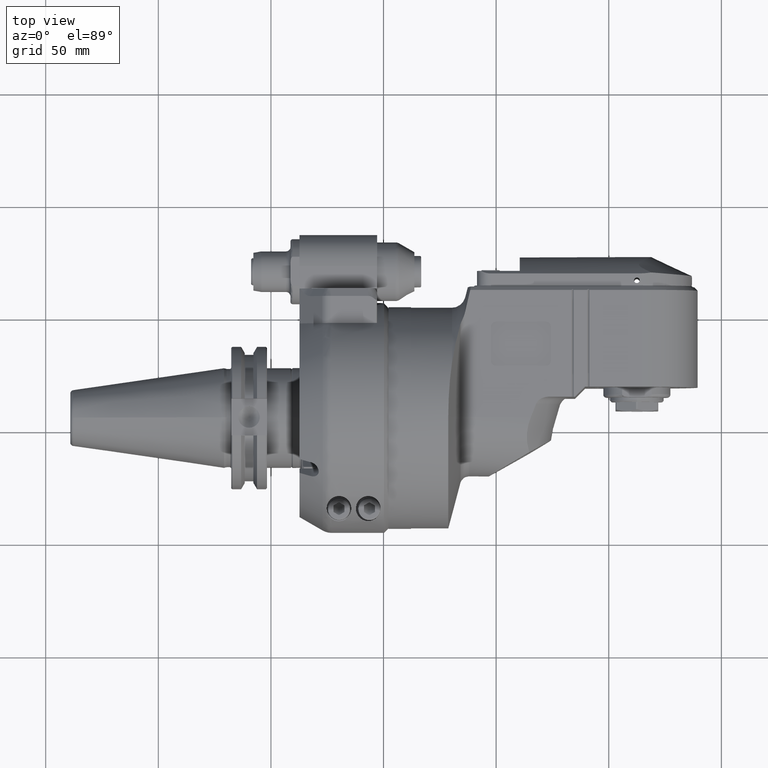
[diagram: clean part render]
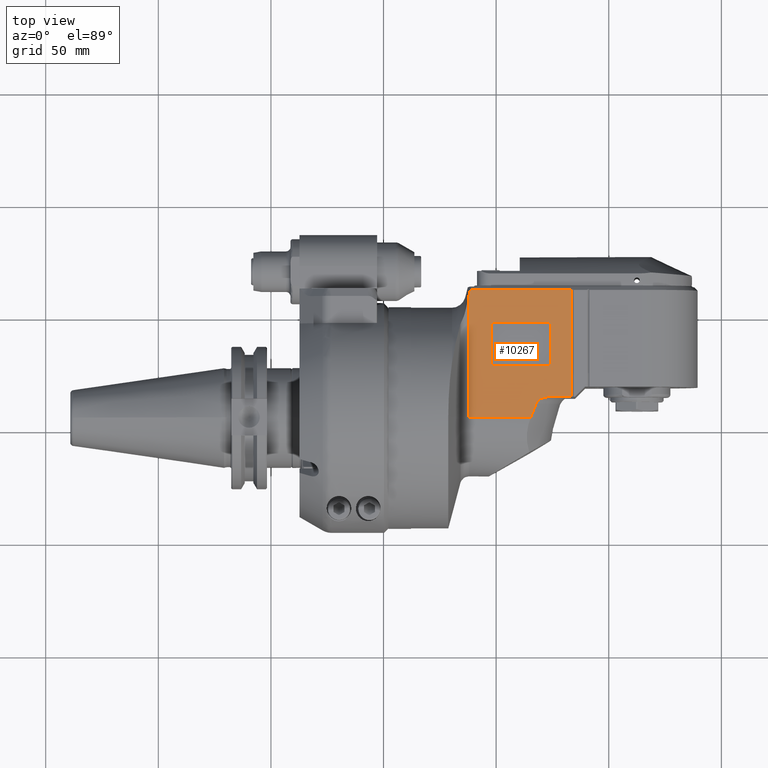
[diagram: same view with one face highlighted and labeled with its STEP entity id]
A machine part, top view. The second image highlights one B-rep face of the part: STEP entity #10267.
In plain terms, the highlighted planar face has unit normal (0, 0, -1).
Its self-contained STEP definition (entity closure, byte-faithful):
#552=FACE_BOUND('',#2242,.T.);
#680=(
BOUNDED_CURVE()
B_SPLINE_CURVE(2,(#46970,#46971,#46972),.UNSPECIFIED.,.F.,.F.)
B_SPLINE_CURVE_WITH_KNOTS((3,3),(2.45979307378571,2.88414733102402),
 .UNSPECIFIED.)
CURVE()
GEOMETRIC_REPRESENTATION_ITEM()
RATIONAL_B_SPLINE_CURVE((1.07610603590362,1.08172985536465,1.08702901851324))
REPRESENTATION_ITEM('')
);
#681=(
BOUNDED_CURVE()
B_SPLINE_CURVE(2,(#46975,#46976,#46977),.UNSPECIFIED.,.F.,.F.)
B_SPLINE_CURVE_WITH_KNOTS((3,3),(-5.35363662766657,-4.60262716979318),
 .UNSPECIFIED.)
CURVE()
GEOMETRIC_REPRESENTATION_ITEM()
RATIONAL_B_SPLINE_CURVE((1.02655482235764,1.02863490292338,1.02960883474264))
REPRESENTATION_ITEM('')
);
#806=B_SPLINE_CURVE_WITH_KNOTS('',3,(#46979,#46980,#46981,#46982,#46983,
#46984,#46985,#46986,#46987,#46988,#46989,#46990,#46991,#46992,#46993,#46994),
 .UNSPECIFIED.,.F.,.F.,(4,2,2,2,2,2,2,4),(1.47447387488442,1.50809444222861,
1.58847813251308,1.66886182279756,1.7655118820045,1.86216194121144,1.96878758504394,
2.07541322887644),.UNSPECIFIED.);
#990=PLANE('',#11386);
#1562=FACE_OUTER_BOUND('',#2241,.T.);
#2241=EDGE_LOOP('',(#8491,#8492,#8493,#8494,#8495,#8496,#8497,#8498));
#2242=EDGE_LOOP('',(#8499,#8500,#8501,#8502,#8503,#8504,#8505,#8506));
#2940=LINE('',#46966,#3630);
#2941=LINE('',#46973,#3631);
#2942=LINE('',#46996,#3632);
#2943=LINE('',#46998,#3633);
#2944=LINE('',#46999,#3634);
#2945=LINE('',#47004,#3635);
#2946=LINE('',#47008,#3636);
#2947=LINE('',#47012,#3637);
#2948=LINE('',#47015,#3638);
#3630=VECTOR('',#13519,27.4593849441913);
#3631=VECTOR('',#13522,54.2915352827303);
#3632=VECTOR('',#13523,10.44762492759);
#3633=VECTOR('',#13524,47.5);
#3634=VECTOR('',#13525,44.96434222488);
#3635=VECTOR('',#13528,15.5);
#3636=VECTOR('',#13531,22.5);
#3637=VECTOR('',#13534,15.5);
#3638=VECTOR('',#13537,22.5);
#4243=CIRCLE('',#11387,2.);
#4244=CIRCLE('',#11388,2.);
#4245=CIRCLE('',#11389,2.);
#4246=CIRCLE('',#11390,2.);
#5013=VERTEX_POINT('',#46934);
#5017=VERTEX_POINT('',#46955);
#5018=VERTEX_POINT('',#46968);
#5019=VERTEX_POINT('',#46969);
#5020=VERTEX_POINT('',#46974);
#5021=VERTEX_POINT('',#46978);
#5022=VERTEX_POINT('',#46995);
#5023=VERTEX_POINT('',#46997);
#5024=VERTEX_POINT('',#47000);
#5025=VERTEX_POINT('',#47001);
#5026=VERTEX_POINT('',#47003);
#5027=VERTEX_POINT('',#47005);
#5028=VERTEX_POINT('',#47007);
#5029=VERTEX_POINT('',#47009);
#5030=VERTEX_POINT('',#47011);
#5031=VERTEX_POINT('',#47013);
#6250=EDGE_CURVE('',#5017,#5013,#2940,.T.);
#6251=EDGE_CURVE('',#5018,#5019,#680,.T.);
#6252=EDGE_CURVE('',#5013,#5018,#2941,.T.);
#6253=EDGE_CURVE('',#5017,#5020,#681,.T.);
#6254=EDGE_CURVE('',#5020,#5021,#806,.T.);
#6255=EDGE_CURVE('',#5022,#5021,#2942,.T.);
#6256=EDGE_CURVE('',#5023,#5022,#2943,.T.);
#6257=EDGE_CURVE('',#5023,#5019,#2944,.T.);
#6258=EDGE_CURVE('',#5024,#5025,#4243,.T.);
#6259=EDGE_CURVE('',#5025,#5026,#2945,.T.);
#6260=EDGE_CURVE('',#5026,#5027,#4244,.T.);
#6261=EDGE_CURVE('',#5027,#5028,#2946,.T.);
#6262=EDGE_CURVE('',#5028,#5029,#4245,.T.);
#6263=EDGE_CURVE('',#5029,#5030,#2947,.T.);
#6264=EDGE_CURVE('',#5030,#5031,#4246,.T.);
#6265=EDGE_CURVE('',#5031,#5024,#2948,.T.);
#8491=ORIENTED_EDGE('',*,*,#6251,.F.);
#8492=ORIENTED_EDGE('',*,*,#6252,.F.);
#8493=ORIENTED_EDGE('',*,*,#6250,.F.);
#8494=ORIENTED_EDGE('',*,*,#6253,.T.);
#8495=ORIENTED_EDGE('',*,*,#6254,.T.);
#8496=ORIENTED_EDGE('',*,*,#6255,.F.);
#8497=ORIENTED_EDGE('',*,*,#6256,.F.);
#8498=ORIENTED_EDGE('',*,*,#6257,.T.);
#8499=ORIENTED_EDGE('',*,*,#6258,.T.);
#8500=ORIENTED_EDGE('',*,*,#6259,.T.);
#8501=ORIENTED_EDGE('',*,*,#6260,.T.);
#8502=ORIENTED_EDGE('',*,*,#6261,.T.);
#8503=ORIENTED_EDGE('',*,*,#6262,.T.);
#8504=ORIENTED_EDGE('',*,*,#6263,.T.);
#8505=ORIENTED_EDGE('',*,*,#6264,.T.);
#8506=ORIENTED_EDGE('',*,*,#6265,.T.);
#10267=ADVANCED_FACE('',(#1562,#552),#990,.F.);
#11386=AXIS2_PLACEMENT_3D('',#46967,#13520,#13521);
#11387=AXIS2_PLACEMENT_3D('',#47002,#13526,#13527);
#11388=AXIS2_PLACEMENT_3D('',#47006,#13529,#13530);
#11389=AXIS2_PLACEMENT_3D('',#47010,#13532,#13533);
#11390=AXIS2_PLACEMENT_3D('',#47014,#13535,#13536);
#13519=DIRECTION('',(-0.999999999999953,1.08850099640995E-7,2.85433788392987E-7));
#13520=DIRECTION('center_axis',(0.,0.,-1.));
#13521=DIRECTION('ref_axis',(1.,0.,0.));
#13522=DIRECTION('',(-1.093349598878E-8,0.999999999999995,-9.63867362433995E-8));
#13523=DIRECTION('',(-1.,0.,0.));
#13524=DIRECTION('',(0.,-1.,0.));
#13525=DIRECTION('',(-1.,-5.068576088391E-9,2.337524639075E-11));
#13526=DIRECTION('center_axis',(0.,0.,-1.));
#13527=DIRECTION('ref_axis',(0.,-1.,0.));
#13528=DIRECTION('',(0.,1.,0.));
#13529=DIRECTION('center_axis',(0.,0.,-1.));
#13530=DIRECTION('ref_axis',(-1.,0.,0.));
#13531=DIRECTION('',(1.,0.,0.));
#13532=DIRECTION('center_axis',(0.,0.,-1.));
#13533=DIRECTION('ref_axis',(0.,1.,0.));
#13534=DIRECTION('',(0.,-1.,0.));
#13535=DIRECTION('center_axis',(0.,0.,-1.));
#13536=DIRECTION('ref_axis',(1.,0.,0.));
#13537=DIRECTION('',(-1.,0.,0.));
#46934=CARTESIAN_POINT('',(24.00000019522,0.,26.));
#46955=CARTESIAN_POINT('',(51.459342795355,-2.88055719787007E-6,25.9999973873906));
#46966=CARTESIAN_POINT('',(51.45938513941,-2.98895679407E-6,25.99999216216));
#46967=CARTESIAN_POINT('Origin',(20.7320512433,-59.7040024,26.));
#46968=CARTESIAN_POINT('',(23.999991517439,54.2915372364053,25.9999982556788));
#46969=CARTESIAN_POINT('',(24.5356584894045,56.4999998496131,26.0000000284913));
#46970=CARTESIAN_POINT('Ctrl Pts',(23.9999874753454,54.2915382132426,26.));
#46971=CARTESIAN_POINT('Ctrl Pts',(24.262484079674,55.3777324289221,26.));
#46972=CARTESIAN_POINT('Ctrl Pts',(24.5356584746926,56.4999998531942,26.));
#46973=CARTESIAN_POINT('',(24.00000019522,0.,26.));
#46974=CARTESIAN_POINT('',(53.811203551587,6.03527601928228,26.0000000275181));
#46975=CARTESIAN_POINT('Ctrl Pts',(51.4593427648487,-2.86835331920736E-6,
26.));
#46976=CARTESIAN_POINT('Ctrl Pts',(52.6087343132191,2.87359376110605,26.));
#46977=CARTESIAN_POINT('Ctrl Pts',(53.8112035759009,6.03527601032641,26.));
#46978=CARTESIAN_POINT('',(59.05237507241,9.,26.));
#46979=CARTESIAN_POINT('Ctrl Pts',(53.8112035758055,6.03527601007138,26.));
#46980=CARTESIAN_POINT('Ctrl Pts',(53.8537056940103,6.14702790307175,26.));
#46981=CARTESIAN_POINT('Ctrl Pts',(53.9018546495173,6.25411102387672,26.));
#46982=CARTESIAN_POINT('Ctrl Pts',(54.0742896382707,6.59275089283478,26.));
#46983=CARTESIAN_POINT('Ctrl Pts',(54.2367307402839,6.83668764581211,26.));
#46984=CARTESIAN_POINT('Ctrl Pts',(54.6127954524565,7.2829228014637,26.));
#46985=CARTESIAN_POINT('Ctrl Pts',(54.8259759036185,7.48559448832665,26.));
#46986=CARTESIAN_POINT('Ctrl Pts',(55.2839845524947,7.85769775115947,26.));
#46987=CARTESIAN_POINT('Ctrl Pts',(55.5777420287483,8.05360356570677,26.));
#46988=CARTESIAN_POINT('Ctrl Pts',(56.1972978531519,8.38742471503764,26.));
#46989=CARTESIAN_POINT('Ctrl Pts',(56.522926381928,8.52565513037798,26.));
#46990=CARTESIAN_POINT('Ctrl Pts',(57.1637508409291,8.74580590178013,26.));
#46991=CARTESIAN_POINT('Ctrl Pts',(57.5413817006295,8.84334700917251,26.));
#46992=CARTESIAN_POINT('Ctrl Pts',(58.3079856201185,8.97043675898971,26.));
#46993=CARTESIAN_POINT('Ctrl Pts',(58.6969562596412,9.,26.));
#46994=CARTESIAN_POINT('Ctrl Pts',(59.0523750724166,9.,26.));
#46995=CARTESIAN_POINT('',(69.5,9.,26.));
#46996=CARTESIAN_POINT('',(69.5,9.,26.));
#46997=CARTESIAN_POINT('',(69.5,56.5,26.));
#46998=CARTESIAN_POINT('',(69.5,56.5,26.));
#46999=CARTESIAN_POINT('',(69.5,56.5,26.));
#47000=CARTESIAN_POINT('',(35.75,22.75,26.));
#47001=CARTESIAN_POINT('',(33.75,24.75,26.));
#47002=CARTESIAN_POINT('Origin',(35.75,24.75,26.));
#47003=CARTESIAN_POINT('',(33.75,40.25,26.));
#47004=CARTESIAN_POINT('',(33.75,24.75,26.));
#47005=CARTESIAN_POINT('',(35.75,42.25,26.));
#47006=CARTESIAN_POINT('Origin',(35.75,40.25,26.));
#47007=CARTESIAN_POINT('',(58.25,42.25,26.));
#47008=CARTESIAN_POINT('',(35.75,42.25,26.));
#47009=CARTESIAN_POINT('',(60.25,40.25,26.));
#47010=CARTESIAN_POINT('Origin',(58.25,40.25,26.));
#47011=CARTESIAN_POINT('',(60.25,24.75,26.));
#47012=CARTESIAN_POINT('',(60.25,40.25,26.));
#47013=CARTESIAN_POINT('',(58.25,22.75,26.));
#47014=CARTESIAN_POINT('Origin',(58.25,24.75,26.));
#47015=CARTESIAN_POINT('',(58.25,22.75,26.));